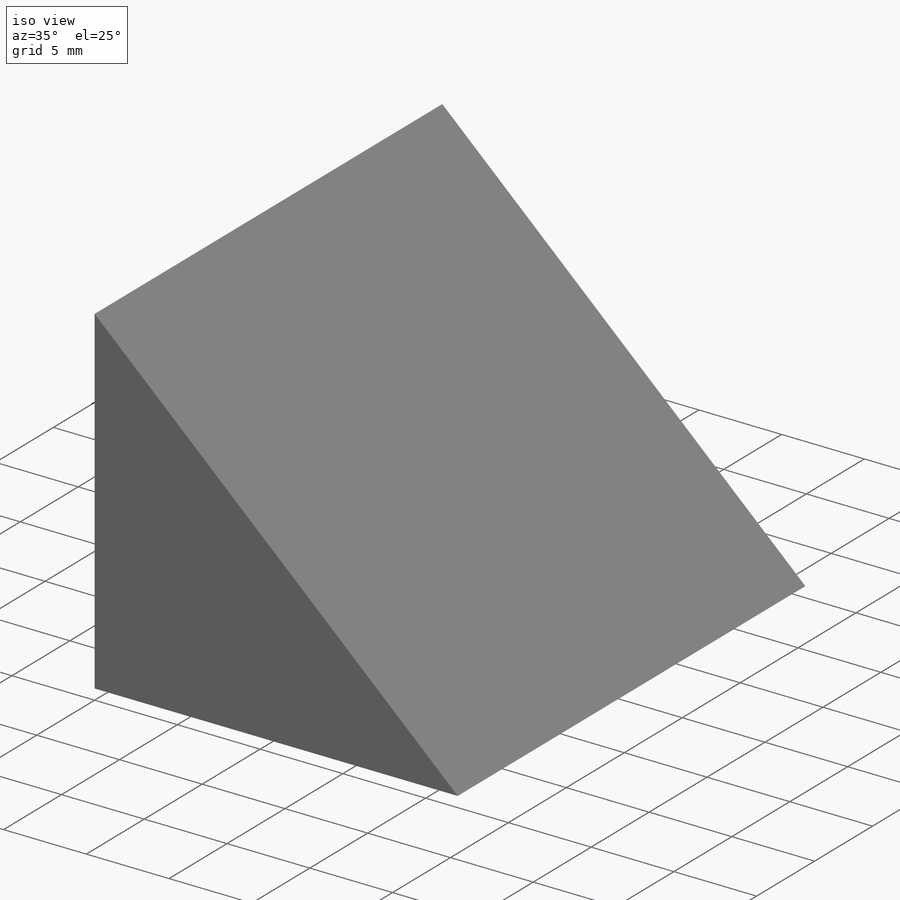
[diagram: iso view]
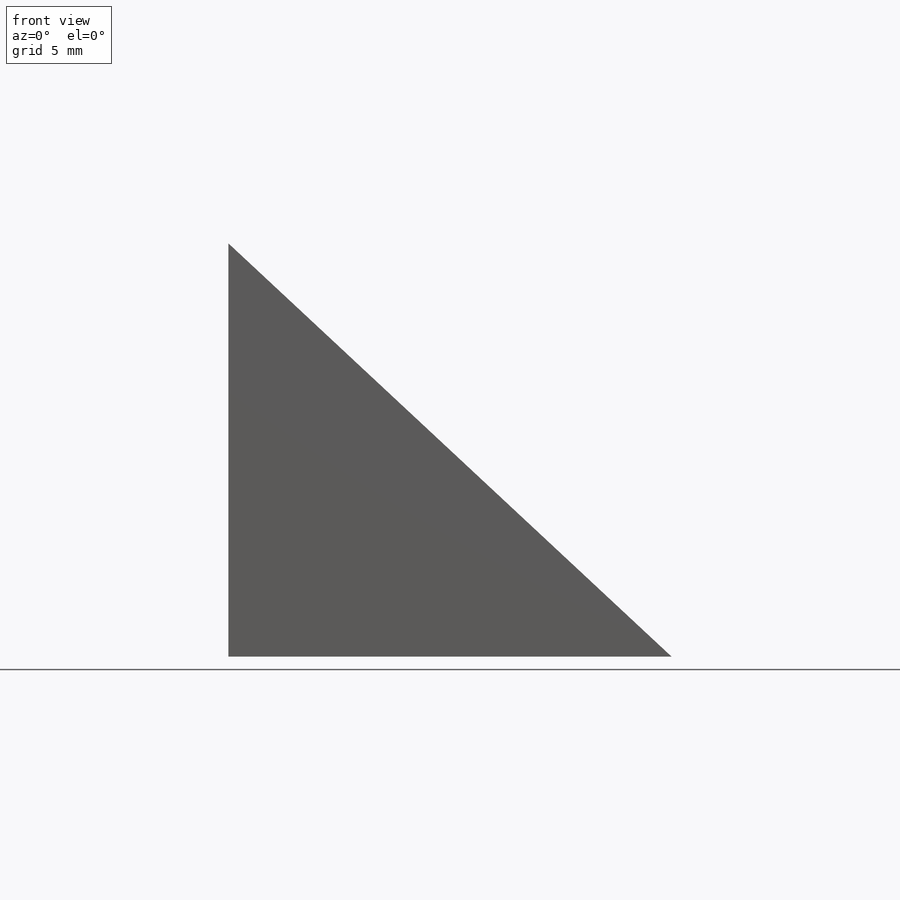
[diagram: front view]
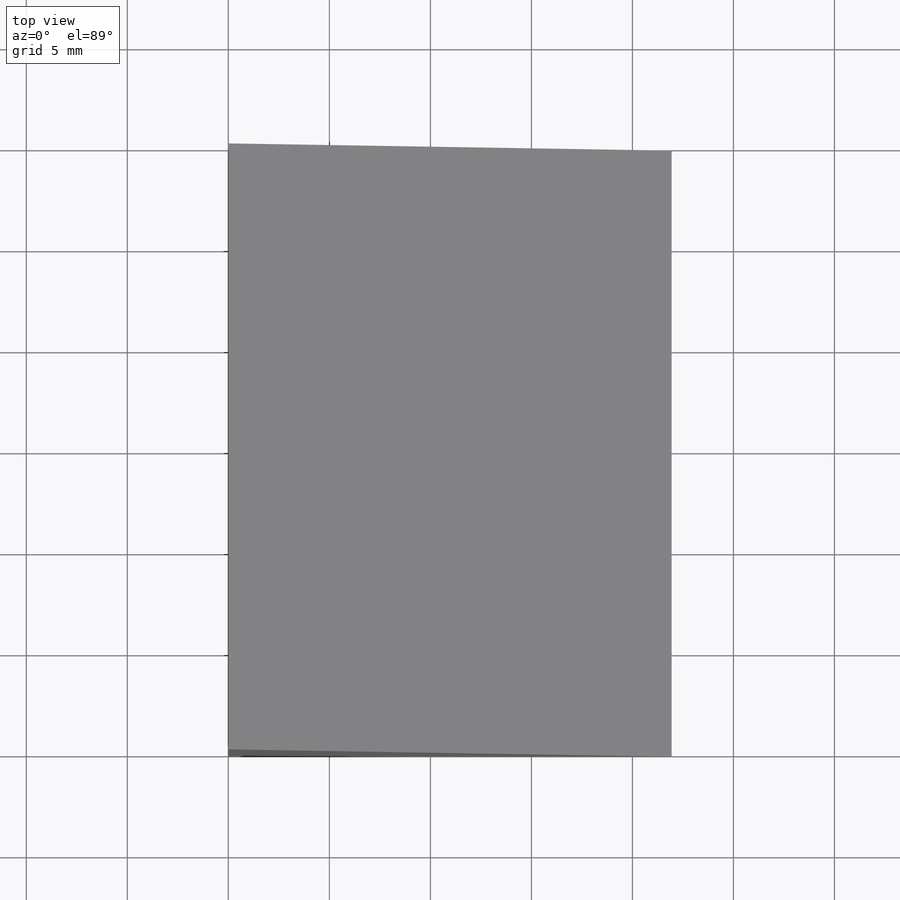
[diagram: top view]
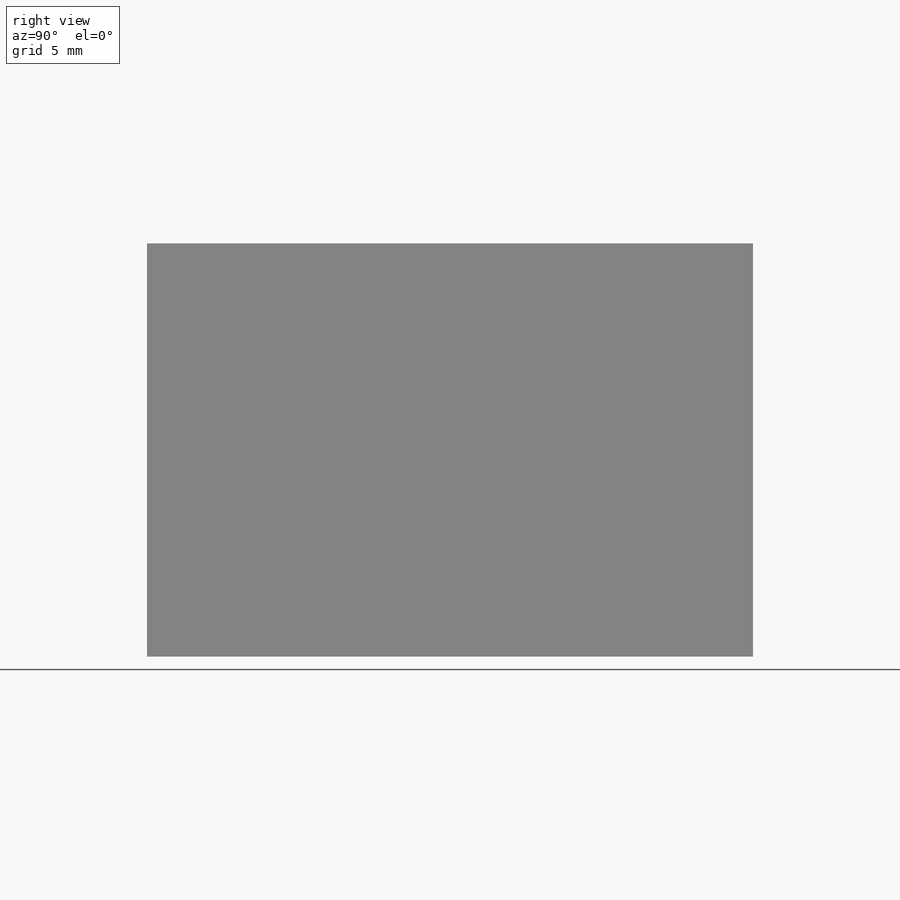
[diagram: right view]
SOLIDWORKS PART (.sldprt)
format: sldprt  version: not decoded by parser v0  size: 157,184 bytes
history: native  units: mm
features: sketch x3, cut_extrude x2, material x1, extrude x1 (+12 scaffold rows collapsed)
feature tree (19):
  scaffold x12  (default folders/planes/origin — collapsed)
  material  "Material <not specified>"
  sketch  "Sketch1"  dims[c1.D1=~23.214535mm c2.D1=43.0deg c2.D2=30.0mm]
  extrude  "Boss-Extrude1"  Depth=30mm
  sketch  "Sketch3"  dims[c1.D3=3.0mm c1.D4=3.0mm c1.D1=12.8mm c1.D2=20.0mm c1.D5=10.97mm c2.D1=10.0mm]
  cut_extrude  "Cut-Extrude1"  Depth=7.5mm
  sketch  "Sketch6"  dims[D1=1.5mm D2=1.5mm D3=13.5mm]
  cut_extrude  "Cut-Extrude2"  Depth=6mm
decode coverage: 6 of 6 modeling features carry decoded parameters
note: ~ marks probable driven/reference dimensions
note: suppression state not decoded; provenance and decode notes live in map.json
